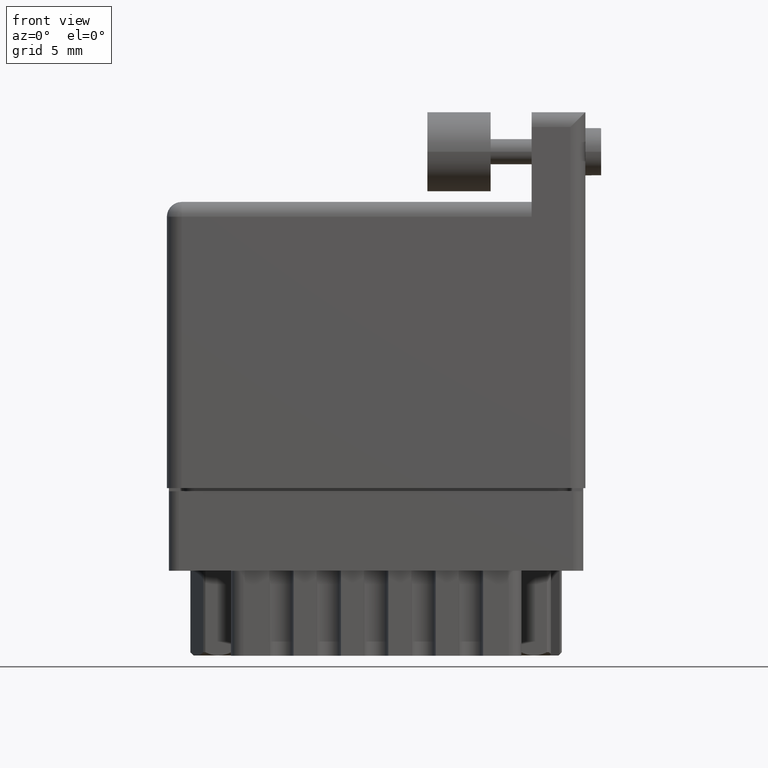
[diagram: clean part render]
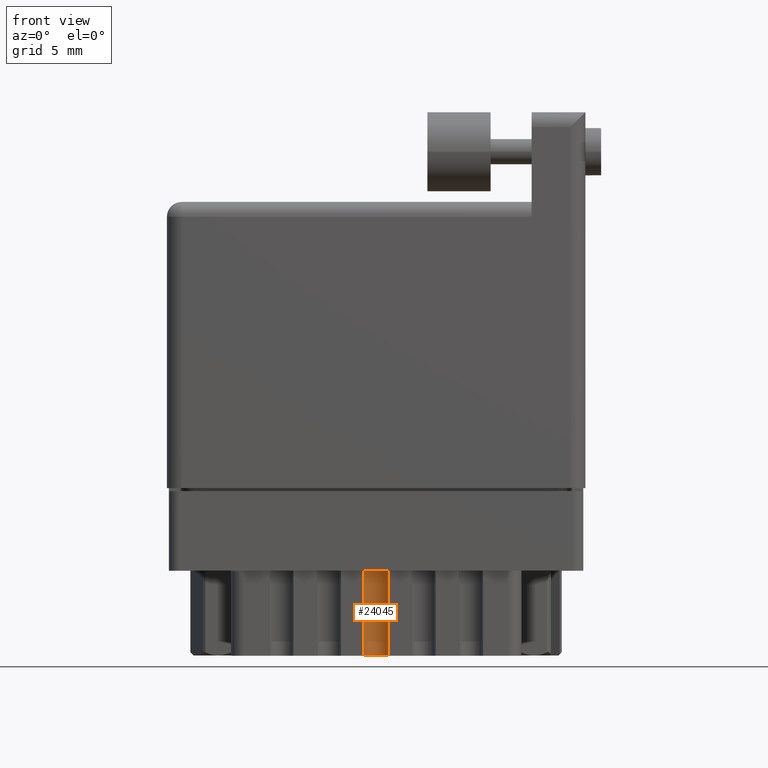
[diagram: same view with one face highlighted and labeled with its STEP entity id]
A machine part, front view. The second image highlights one B-rep face of the part: STEP entity #24045.
In plain terms, the highlighted cylindrical surface (edge-blend (fillet) strip) has radius 0.9906 mm, axis along (-0, -0, -1).
Its self-contained STEP definition (entity closure, byte-faithful):
#1284 = CARTESIAN_POINT ( 'NONE',  ( -0.03900000000000013200, -0.2939999999999999800, -0.7980000000000000400 ) ) ;
#1409 = CARTESIAN_POINT ( 'NONE',  ( -0.03900000000000013200, -0.2939999999999999800, -0.5290000000000000300 ) ) ;
#2057 = CIRCLE ( 'NONE', #5852, 0.03900000000000000000 ) ;
#2405 = DIRECTION ( 'NONE',  ( -0.0000000000000000000, -0.0000000000000000000, 1.000000000000000000 ) ) ;
#2610 = CARTESIAN_POINT ( 'NONE',  ( 0.03899999999999986100, -0.2939999999999999800, -0.5290000000000000300 ) ) ;
#4862 = DIRECTION ( 'NONE',  ( -1.000000000000000000, -3.502369222646491400E-015, 0.0000000000000000000 ) ) ;
#5169 = VECTOR ( 'NONE', #24585, 39.37007874015748100 ) ;
#5852 = AXIS2_PLACEMENT_3D ( 'NONE', #10671, #2405, #4862 ) ;
#7156 = FACE_OUTER_BOUND ( 'NONE', #14074, .T. ) ;
#8957 = VERTEX_POINT ( 'NONE', #27700 ) ;
#10167 = LINE ( 'NONE', #1409, #33585 ) ;
#10671 = CARTESIAN_POINT ( 'NONE',  ( -1.365923996832131600E-016, -0.2940000000000001500, -0.5290000000000000300 ) ) ;
#12406 = VERTEX_POINT ( 'NONE', #14566 ) ;
#12602 = DIRECTION ( 'NONE',  ( -0.0000000000000000000, -0.0000000000000000000, 1.000000000000000000 ) ) ;
#12851 = ORIENTED_EDGE ( 'NONE', *, *, #27971, .T. ) ;
#13387 = VERTEX_POINT ( 'NONE', #1284 ) ;
#14074 = EDGE_LOOP ( 'NONE', ( #19542, #14176, #27235, #12851 ) ) ;
#14176 = ORIENTED_EDGE ( 'NONE', *, *, #21630, .F. ) ;
#14566 = CARTESIAN_POINT ( 'NONE',  ( -0.03900000000000013200, -0.2939999999999999800, -0.5290000000000000300 ) ) ;
#16897 = CARTESIAN_POINT ( 'NONE',  ( -1.365923996832131600E-016, -0.2940000000000001500, -0.5290000000000000300 ) ) ;
#19542 = ORIENTED_EDGE ( 'NONE', *, *, #29511, .F. ) ;
#19609 = CIRCLE ( 'NONE', #35929, 0.03900000000000000000 ) ;
#19912 = DIRECTION ( 'NONE',  ( -0.0000000000000000000, -0.0000000000000000000, -1.000000000000000000 ) ) ;
#21630 = EDGE_CURVE ( 'NONE', #23993, #8957, #23353, .T. ) ;
#23353 = LINE ( 'NONE', #2610, #5169 ) ;
#23993 = VERTEX_POINT ( 'NONE', #26002 ) ;
#24045 = ADVANCED_FACE ( 'NONE', ( #7156 ), #24947, .F. ) ;
#24585 = DIRECTION ( 'NONE',  ( -0.0000000000000000000, -0.0000000000000000000, -1.000000000000000000 ) ) ;
#24947 = CYLINDRICAL_SURFACE ( 'NONE', #25096, 0.03900000000000000000 ) ;
#25096 = AXIS2_PLACEMENT_3D ( 'NONE', #16897, #19912, #28521 ) ;
#26002 = CARTESIAN_POINT ( 'NONE',  ( 0.03899999999999986100, -0.2939999999999999800, -0.5290000000000000300 ) ) ;
#26776 = DIRECTION ( 'NONE',  ( -0.0000000000000000000, -0.0000000000000000000, -1.000000000000000000 ) ) ;
#27235 = ORIENTED_EDGE ( 'NONE', *, *, #33440, .T. ) ;
#27700 = CARTESIAN_POINT ( 'NONE',  ( 0.03899999999999986100, -0.2939999999999999800, -0.7980000000000000400 ) ) ;
#27971 = EDGE_CURVE ( 'NONE', #12406, #13387, #10167, .T. ) ;
#28521 = DIRECTION ( 'NONE',  ( -1.000000000000000000, 0.0000000000000000000, 0.0000000000000000000 ) ) ;
#29511 = EDGE_CURVE ( 'NONE', #8957, #13387, #19609, .T. ) ;
#33440 = EDGE_CURVE ( 'NONE', #23993, #12406, #2057, .T. ) ;
#33585 = VECTOR ( 'NONE', #26776, 39.37007874015748100 ) ;
#34832 = DIRECTION ( 'NONE',  ( -1.000000000000000000, -3.502369222646491400E-015, 0.0000000000000000000 ) ) ;
#35193 = CARTESIAN_POINT ( 'NONE',  ( -1.365923996832131600E-016, -0.2940000000000001500, -0.7980000000000000400 ) ) ;
#35929 = AXIS2_PLACEMENT_3D ( 'NONE', #35193, #12602, #34832 ) ;